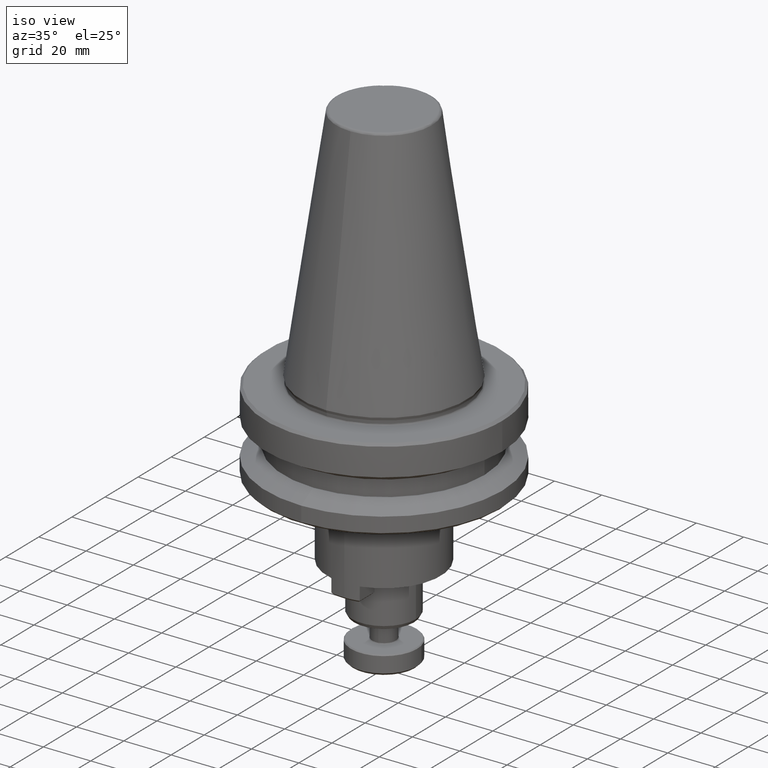
[diagram: clean part render]
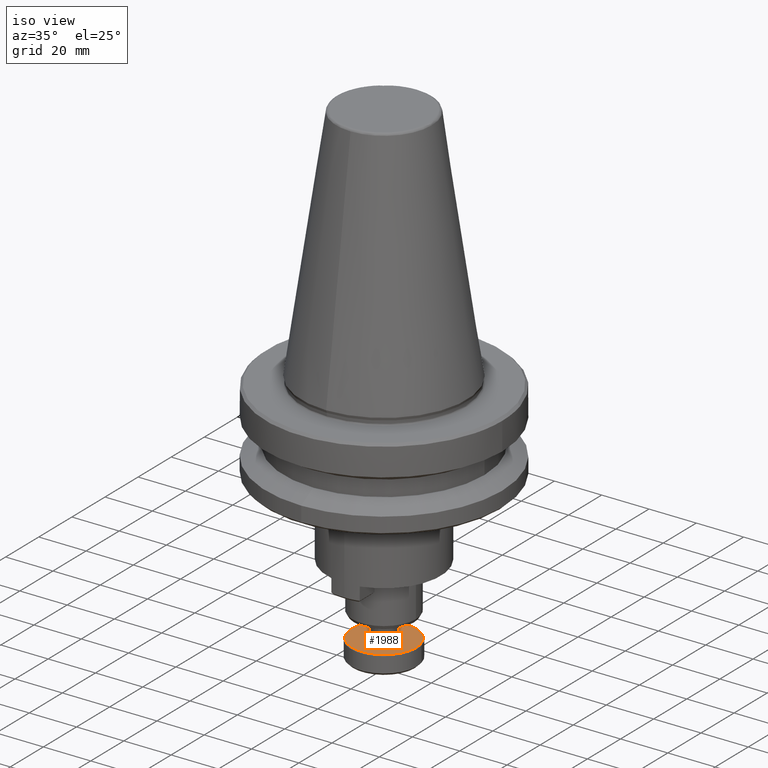
[diagram: same view with one face highlighted and labeled with its STEP entity id]
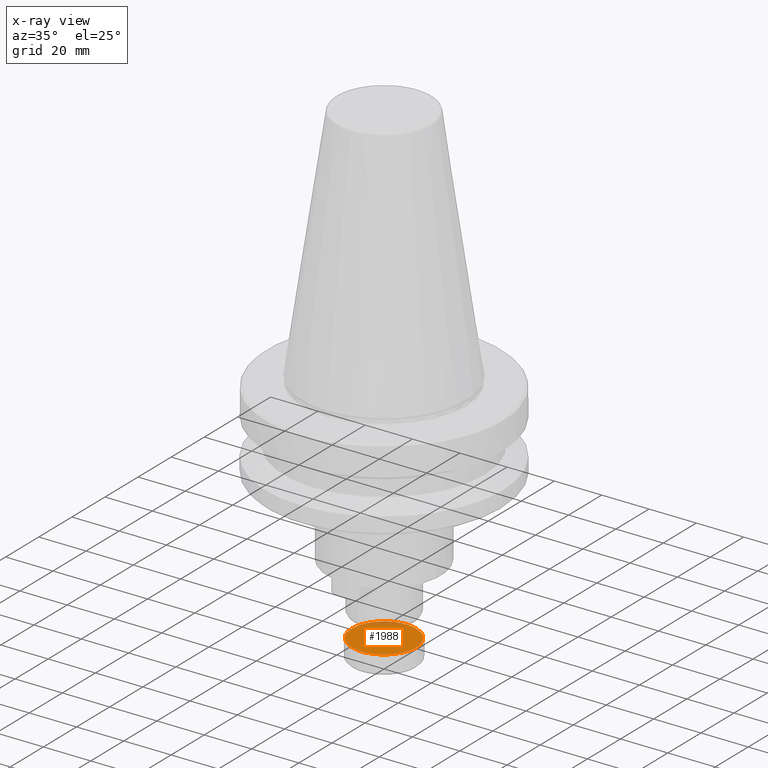
[diagram: x-ray of the same camera — body ghosted, the highlighted face saturated]
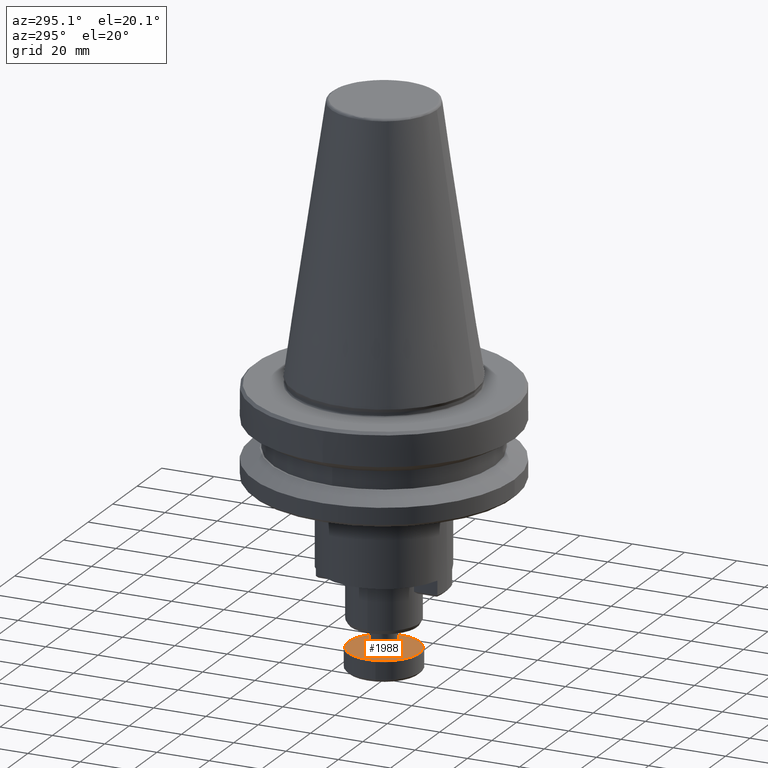
[diagram: same view with one face highlighted and labeled with its STEP entity id]
A machine part, iso view. The second image highlights one B-rep face of the part: STEP entity #1988.
The next image is the same camera in x-ray: the body ghosted, the highlighted face saturated — about 8% of this face is hidden behind the body in this view.
A second angle (auxiliary view) of the same face is appended — the face is thin or edge-on in the first view.
In plain terms, the highlighted planar face has unit normal (0, 0, -1).
Its self-contained STEP definition (entity closure, byte-faithful):
#6 = CARTESIAN_POINT ( 'NONE',  ( 1.150362036825479000, -5.276046545541901400, -100.3811879818963000 ) ) ;
#20 = CARTESIAN_POINT ( 'NONE',  ( 1.652615713946306000, -5.166537738417531500, -100.3811879820430300 ) ) ;
#34 = CARTESIAN_POINT ( 'NONE',  ( 2.129708564363298300, -4.988823327713994600, -100.3811879820430300 ) ) ;
#45 = CARTESIAN_POINT ( 'NONE',  ( 2.588702026038348400, -4.739060813099229100, -100.3811879820430300 ) ) ;
#49 = CARTESIAN_POINT ( 'NONE',  ( 2.599578677311277900, -4.733110212757438300, -100.3811879820430400 ) ) ;
#53 = CARTESIAN_POINT ( 'NONE',  ( 2.617463178958769500, -4.723250147219183700, -100.3811879820429900 ) ) ;
#56 = CARTESIAN_POINT ( 'NONE',  ( 2.644236343932646200, -4.708393083940179300, -100.3811879820430200 ) ) ;
#62 = CARTESIAN_POINT ( 'NONE',  ( 2.706331949723496300, -4.673257848154497300, -100.3811879820430300 ) ) ;
#65 = CARTESIAN_POINT ( 'NONE',  ( 2.829022711379109100, -4.601112357377747500, -100.3811879820430300 ) ) ;
#81 = CARTESIAN_POINT ( 'NONE',  ( 3.068402434985964900, -4.449321299002726900, -100.3811879820429900 ) ) ;
#93 = CARTESIAN_POINT ( 'NONE',  ( 3.523154683382175600, -4.115738874966598200, -100.3811879820430000 ) ) ;
#96 = CARTESIAN_POINT ( 'NONE',  ( 3.871787126891798300, -3.778381984730911500, -100.3811879820430200 ) ) ;
#102 = CARTESIAN_POINT ( 'NONE',  ( 4.092609132733771900, -3.522877452683379000, -100.3811879820430000 ) ) ;
#106 = CARTESIAN_POINT ( 'NONE',  ( 4.101358733077885800, -3.512694658450159500, -100.3811879820430200 ) ) ;
#112 = CARTESIAN_POINT ( 'NONE',  ( 4.116705079970385500, -3.494702107432545300, -100.3811879820430200 ) ) ;
#118 = CARTESIAN_POINT ( 'NONE',  ( 4.139629770922908000, -3.467646085698922000, -100.3811879820430000 ) ) ;
#120 = CARTESIAN_POINT ( 'NONE',  ( 4.192456910775232100, -3.404045001870078700, -100.3811879820430400 ) ) ;
#122 = CARTESIAN_POINT ( 'NONE',  ( 4.295455967665605900, -3.274961368410832300, -100.3811879820430200 ) ) ;
#125 = CARTESIAN_POINT ( 'NONE',  ( 4.490833190189316100, -3.009268238286106000, -100.3811879820430000 ) ) ;
#127 = CARTESIAN_POINT ( 'NONE',  ( 4.640092138768976900, -2.768629789825642500, -100.3811879820430300 ) ) ;
#130 = CARTESIAN_POINT ( 'NONE',  ( 4.742932729126249700, -2.581700213589233500, -100.3811879820430000 ) ) ;
#139 = CARTESIAN_POINT ( 'NONE',  ( 4.756106838168597600, -2.557377663940258100, -100.3811879820430200 ) ) ;
#141 = CARTESIAN_POINT ( 'NONE',  ( 4.780202662698194200, -2.512073750092004500, -100.3811879820430200 ) ) ;
#144 = CARTESIAN_POINT ( 'NONE',  ( 4.815841382717923800, -2.443906468035501600, -100.3811879820430400 ) ) ;
#150 = CARTESIAN_POINT ( 'NONE',  ( 4.895463278674601100, -2.283369597581451400, -100.3811879820430000 ) ) ;
#155 = CARTESIAN_POINT ( 'NONE',  ( 5.040566600897211200, -1.956376340717868500, -100.3811879820429900 ) ) ;
#159 = CARTESIAN_POINT ( 'NONE',  ( 5.140700071903900400, -1.665948664625405400, -100.3811879820430300 ) ) ;
#162 = CARTESIAN_POINT ( 'NONE',  ( 5.203679772566853300, -1.443054036737076800, -100.3811879820430300 ) ) ;
#169 = CARTESIAN_POINT ( 'NONE',  ( 5.211299281826140600, -1.415338017895686900, -100.3811879820430300 ) ) ;
#171 = CARTESIAN_POINT ( 'NONE',  ( 5.225309183074790200, -1.362757150610697500, -100.3811879820430000 ) ) ;
#175 = CARTESIAN_POINT ( 'NONE',  ( 5.245716682419029600, -1.283787071004982600, -100.3811879820430300 ) ) ;
#180 = CARTESIAN_POINT ( 'NONE',  ( 5.289082713187747600, -1.098832101177367400, -100.3811879820430000 ) ) ;
#184 = CARTESIAN_POINT ( 'NONE',  ( 5.358808903920481400, -0.7261563585316693800, -100.3811879820430200 ) ) ;
#190 = CARTESIAN_POINT ( 'NONE',  ( 5.389421288883334600, -0.4019786311374218800, -100.3811879820430300 ) ) ;
#193 = CARTESIAN_POINT ( 'NONE',  ( 5.398735542252664400, -0.1291964268893950300, -100.3811879820430300 ) ) ;
#196 = CARTESIAN_POINT ( 'NONE',  ( 5.399839739984530600, -0.07147968702495936800, -100.3811879820430400 ) ) ;
#200 = CARTESIAN_POINT ( 'NONE',  ( 5.400199609606506400, 0.04057410595713973500, -100.3811879820429900 ) ) ;
#202 = CARTESIAN_POINT ( 'NONE',  ( 5.398132235255729900, 0.2084354076983429300, -100.3811879820429700 ) ) ;
#204 = CARTESIAN_POINT ( 'NONE',  ( 5.375058110284348900, 0.5985760643042051800, -100.3811879820430300 ) ) ;
#211 = CARTESIAN_POINT ( 'NONE',  ( 5.323994143475334600, 0.9303496886116083800, -100.3811879820430200 ) ) ;
#214 = CARTESIAN_POINT ( 'NONE',  ( 5.180151349317333700, 1.590386733515304100, -100.3811879820430300 ) ) ;
#224 = CARTESIAN_POINT ( 'NONE',  ( 5.031799607879891700, 2.010805156916731100, -100.3811879820430000 ) ) ;
#227 = CARTESIAN_POINT ( 'NONE',  ( 4.805383237352915900, 2.464045465936324700, -100.3811879820430300 ) ) ;
#234 = CARTESIAN_POINT ( 'NONE',  ( 4.781139574197873700, 2.510752427322908700, -100.3811879820430200 ) ) ;
#241 = CARTESIAN_POINT ( 'NONE',  ( 4.729676206310954500, 2.606475779371871100, -100.3811879820430200 ) ) ;
#251 = CARTESIAN_POINT ( 'NONE',  ( 4.650418824251693700, 2.748717163772183400, -100.3811879820430200 ) ) ;
#262 = CARTESIAN_POINT ( 'NONE',  ( 4.451048621177912800, 3.071208221660986800, -100.3811879820430000 ) ) ;
#270 = CARTESIAN_POINT ( 'NONE',  ( 4.255411912939519100, 3.331505404345243400, -100.3811879820430000 ) ) ;
#274 = CARTESIAN_POINT ( 'NONE',  ( 4.096310400387429800, 3.518666429319647000, -100.3811879820430300 ) ) ;
#286 = CARTESIAN_POINT ( 'NONE',  ( 4.080580999117365200, 3.536889747443430200, -100.3811879820430200 ) ) ;
#296 = CARTESIAN_POINT ( 'NONE',  ( 4.046796591970957200, 3.575511823526798000, -100.3811879820430300 ) ) ;
#311 = CARTESIAN_POINT ( 'NONE',  ( 3.995742921214126700, 3.633048026169833900, -100.3811879820430200 ) ) ;
#316 = CARTESIAN_POINT ( 'NONE',  ( 3.873978269187640300, 3.764520785296142400, -100.3811879820430200 ) ) ;
#319 = CARTESIAN_POINT ( 'NONE',  ( 3.619891284092486400, 4.016352782052307700, -100.3811879820430300 ) ) ;
#329 = CARTESIAN_POINT ( 'NONE',  ( 3.384003557938605000, 4.213157028135107400, -100.3811879820430400 ) ) ;
#338 = CARTESIAN_POINT ( 'NONE',  ( 3.198038322429891200, 4.351234337128824200, -100.3811879820430300 ) ) ;
#342 = CARTESIAN_POINT ( 'NONE',  ( 3.180624276276292000, 4.363971968077399000, -100.3811879820430200 ) ) ;
#345 = CARTESIAN_POINT ( 'NONE',  ( 3.142307432522880800, 4.391653347830429200, -100.3811879820430200 ) ) ;
#346 = CARTESIAN_POINT ( 'NONE',  ( 3.084592173238360800, 4.432777243042901100, -100.3811879820430000 ) ) ;
#350 = CARTESIAN_POINT ( 'NONE',  ( 2.948243279327031500, 4.525945777619168300, -100.3811879820430300 ) ) ;
#353 = CARTESIAN_POINT ( 'NONE',  ( 2.668825669181194000, 4.701133963093701200, -100.3811879820430200 ) ) ;
#358 = CARTESIAN_POINT ( 'NONE',  ( 2.417805165073608100, 4.832182892909584000, -100.3811879820430300 ) ) ;
#361 = CARTESIAN_POINT ( 'NONE',  ( 2.234559118497686700, 4.915983931408884900, -100.3811879820430000 ) ) ;
#367 = CARTESIAN_POINT ( 'NONE',  ( 2.226740802006977700, 4.919528416966369600, -100.3811879820430000 ) ) ;
#373 = CARTESIAN_POINT ( 'NONE',  ( 2.208121890648158600, 4.927919341810818900, -100.3811879820430000 ) ) ;
#382 = CARTESIAN_POINT ( 'NONE',  ( 2.180172107952166100, 4.940422695511551300, -100.3811879820430000 ) ) ;
#385 = CARTESIAN_POINT ( 'NONE',  ( 2.114806038723872700, 4.969015952518404300, -100.3811879820430300 ) ) ;
#387 = CARTESIAN_POINT ( 'NONE',  ( 1.983474261850009400, 5.023877526685937200, -100.3811879820430300 ) ) ;
#396 = CARTESIAN_POINT ( 'NONE',  ( 1.718412154433179400, 5.124300915636345300, -100.3811879820430000 ) ) ;
#398 = CARTESIAN_POINT ( 'NONE',  ( 1.178693724923108400, 5.287948655998541800, -100.3811879820430000 ) ) ;
#402 = CARTESIAN_POINT ( 'NONE',  ( 0.6996307030406210300, 5.364448369099942900, -100.3811879820430000 ) ) ;
#406 = CARTESIAN_POINT ( 'NONE',  ( 0.3627365639649428600, 5.387814106648243700, -100.3811879820430300 ) ) ;
#408 = EDGE_CURVE ( 'NONE', #1760, #618, #2023, .T. ) ;
#409 = CARTESIAN_POINT ( 'NONE',  ( 0.3569207465942445500, 5.388199834389424400, -100.3811879820430400 ) ) ;
#421 = CARTESIAN_POINT ( 'NONE',  ( 0.3408997232584556300, 5.389240449816456100, -100.3811879820429900 ) ) ;
#423 = EDGE_CURVE ( 'NONE', #1670, #1490, #613, .T. ) ;
#427 = CARTESIAN_POINT ( 'NONE',  ( 0.3168718955950083900, 5.390748207989877200, -100.3811879820430200 ) ) ;
#430 = CARTESIAN_POINT ( 'NONE',  ( 0.2608329157619346800, 5.393894155624651400, -100.3811879820430300 ) ) ;
#432 = CARTESIAN_POINT ( 'NONE',  ( 0.1488587616223533700, 5.398697431814675900, -100.3811879820429900 ) ) ;
#435 = CARTESIAN_POINT ( 'NONE',  ( -0.07467432455056453900, 5.402349507876613700, -100.3811879820430000 ) ) ;
#437 = CARTESIAN_POINT ( 'NONE',  ( -0.5200796084714030000, 5.385835754728060600, -100.3811879820430200 ) ) ;
#454 = CARTESIAN_POINT ( 'NONE',  ( -0.8990083288178345500, 5.330850414419427500, -100.3811879820430300 ) ) ;
#464 = CARTESIAN_POINT ( 'NONE',  ( -1.150362036933692400, 5.276046545518307000, -100.3811879818963000 ) ) ;
#587 = FACE_BOUND ( 'NONE', #894, .T. ) ;
#613 = B_SPLINE_CURVE_WITH_KNOTS ( 'NONE', 3,
 ( #2201, #1765, #1415, #2495, #2228, #2282, #2308, #1531, #1403, #2073, #2022, #1435, #1624, #841, #838, #835, #1824, #2601, #2019, #764, #760, #755, #1652, #1417, #1606, #1044, #1548, #1708, #1662, #1438, #1505, #809, #804, #801, #1804, #1821, #1457, #733, #729, #728, #1555, #1580, #1614, #1815, #1043, #1039, #1573, #1350, #1915, #786, #785, #784, #2432, #2341, #1445, #859, #857, #855, #1895, #1885, #1882, #1875, #1879, #1394, #1501, #1390, #1270, #1668, #1444, #1510, #1054, #1609, #1608, #1823, #1889, #1892, #1264, #1671, #1450, #1480, #1613 ),
 .UNSPECIFIED., .F., .F.,
 ( 4, 1, 1, 1, 1, 1, 2, 2, 1, 1, 1, 1, 1, 2, 2, 1, 1, 1, 2, 2, 1, 1, 1, 2, 2, 1, 1, 2, 2, 2, 1, 1, 2, 2, 1, 1, 1, 2, 2, 1, 1, 1, 2, 2, 1, 1, 1, 1, 2, 2, 1, 1, 1, 1, 1, 2, 2, 4 ),
 ( 0.0000000000000000000, 0.06250000000000086000, 0.09375000000000129100, 0.1093750000000015000, 0.1171875000000016100, 0.1210937500000016500, 0.1230468750000016700, 0.1250000000000016700, 0.1875000000000023600, 0.2187500000000026600, 0.2343750000000028600, 0.2421875000000029400, 0.2460937500000029400, 0.2480468750000029400, 0.2500000000000029400, 0.2812500000000034400, 0.2968750000000036600, 0.3046875000000037200, 0.3085937500000037200, 0.3125000000000036600, 0.3437500000000033900, 0.3593750000000032200, 0.3671875000000031600, 0.3710937500000031600, 0.3750000000000031600, 0.4062500000000028300, 0.4218750000000026600, 0.4296875000000025500, 0.4375000000000023900, 0.5000000000000013300, 0.5312500000000008900, 0.5468750000000006700, 0.5546875000000005600, 0.5625000000000004400, 0.5937500000000000000, 0.6093749999999997800, 0.6171874999999996700, 0.6210937499999995600, 0.6249999999999994400, 0.6562499999999990000, 0.6718749999999987800, 0.6796874999999986700, 0.6835937499999986700, 0.6874999999999985600, 0.7187499999999981100, 0.7343749999999978900, 0.7421874999999977800, 0.7460937499999977800, 0.7480468749999977800, 0.7499999999999977800, 0.8124999999999986700, 0.8437499999999990000, 0.8593749999999991100, 0.8671874999999992200, 0.8710937499999991100, 0.8730468749999991100, 0.8749999999999991100, 1.000000000000000000 ),
 .UNSPECIFIED. ) ;
#618 = VERTEX_POINT ( 'NONE', #726 ) ;
#634 = AXIS2_PLACEMENT_3D ( 'NONE', #765, #1825, #1845 ) ;
#698 = CARTESIAN_POINT ( 'NONE',  ( -1.150362036933692400, 5.276046545518307000, -100.3811879818963000 ) ) ;
#726 = CARTESIAN_POINT ( 'NONE',  ( -13.26613177959899100, -2.994953690178425300, -100.3811879820430000 ) ) ;
#728 = CARTESIAN_POINT ( 'NONE',  ( -5.031799607887752900, -2.010805156920878500, -100.3811879820430400 ) ) ;
#729 = CARTESIAN_POINT ( 'NONE',  ( -4.805383237361022400, -2.464045465938392400, -100.3811879820430300 ) ) ;
#733 = CARTESIAN_POINT ( 'NONE',  ( -4.781139574205997900, -2.510752427324789900, -100.3811879820430400 ) ) ;
#755 = CARTESIAN_POINT ( 'NONE',  ( -2.948243279337503500, -4.525945777618592700, -100.3811879820430200 ) ) ;
#760 = CARTESIAN_POINT ( 'NONE',  ( -2.668825669192864200, -4.701133963092029700, -100.3811879820429900 ) ) ;
#764 = CARTESIAN_POINT ( 'NONE',  ( -2.417805165082237200, -4.832182892909634700, -100.3811879820430200 ) ) ;
#765 = CARTESIAN_POINT ( 'NONE',  ( 1.208669655119371500E-017, 2.728685123852937400E-018, -100.3811879820430000 ) ) ;
#784 = CARTESIAN_POINT ( 'NONE',  ( -5.225309183082490700, 1.362757150610594400, -100.3811879820429900 ) ) ;
#785 = CARTESIAN_POINT ( 'NONE',  ( -5.245716682426762000, 1.283787071005266300, -100.3811879820430200 ) ) ;
#786 = CARTESIAN_POINT ( 'NONE',  ( -5.289082713195553800, 1.098832101178324400, -100.3811879820430200 ) ) ;
#797 = AXIS2_PLACEMENT_3D ( 'NONE', #1957, #1953, #1949 ) ;
#801 = CARTESIAN_POINT ( 'NONE',  ( -4.255411912947148600, -3.331505404346828000, -100.3811879820430300 ) ) ;
#804 = CARTESIAN_POINT ( 'NONE',  ( -4.096310400394636500, -3.518666429322327500, -100.3811879820430000 ) ) ;
#809 = CARTESIAN_POINT ( 'NONE',  ( -4.080580999125129600, -3.536889747445510800, -100.3811879820430300 ) ) ;
#835 = CARTESIAN_POINT ( 'NONE',  ( -2.180172107957782900, -4.940422695513758500, -100.3811879820430200 ) ) ;
#838 = CARTESIAN_POINT ( 'NONE',  ( -2.114806038730252500, -4.969015952520446300, -100.3811879820430300 ) ) ;
#841 = CARTESIAN_POINT ( 'NONE',  ( -1.983474261857739700, -5.023877526687683400, -100.3811879820430000 ) ) ;
#855 = CARTESIAN_POINT ( 'NONE',  ( -4.815841382723827600, 2.443906468037609200, -100.3811879820429900 ) ) ;
#857 = CARTESIAN_POINT ( 'NONE',  ( -4.895463278680032300, 2.283369597585188400, -100.3811879820430200 ) ) ;
#859 = CARTESIAN_POINT ( 'NONE',  ( -5.040566600902445200, 1.956376340722816100, -100.3811879820429900 ) ) ;
#894 = EDGE_LOOP ( 'NONE', ( #1258, #1149 ) ) ;
#950 = B_SPLINE_CURVE_WITH_KNOTS ( 'NONE', 3,
 ( #464, #454, #437, #435, #432, #430, #427, #421, #409, #406, #402, #398, #396, #387, #385, #382, #373, #367, #361, #358, #353, #350, #346, #345, #342, #338, #329, #319, #316, #311, #296, #286, #274, #270, #262, #251, #241, #234, #227, #224, #214, #211, #204, #202, #200, #196, #193, #190, #184, #180, #175, #171, #169, #162, #159, #155, #150, #144, #141, #139, #130, #127, #125, #122, #120, #118, #112, #106, #102, #96, #93, #81, #65, #62, #56, #53, #49, #45, #34, #20, #6 ),
 .UNSPECIFIED., .F., .F.,
 ( 4, 1, 1, 1, 1, 1, 2, 2, 1, 1, 1, 1, 1, 2, 2, 1, 1, 1, 2, 2, 1, 1, 1, 2, 2, 1, 1, 2, 2, 2, 1, 1, 2, 2, 1, 1, 1, 2, 2, 1, 1, 1, 2, 2, 1, 1, 1, 1, 2, 2, 1, 1, 1, 1, 1, 2, 2, 4 ),
 ( 0.0000000000000000000, 0.06249999999999932000, 0.09374999999999897300, 0.1093749999999988100, 0.1171874999999987200, 0.1210937499999986800, 0.1230468749999986700, 0.1249999999999986400, 0.1874999999999982000, 0.2187499999999980000, 0.2343749999999978900, 0.2421874999999978400, 0.2460937499999977500, 0.2480468749999977000, 0.2499999999999976100, 0.2812499999999971700, 0.2968749999999969500, 0.3046874999999968400, 0.3085937499999968400, 0.3124999999999967800, 0.3437499999999966700, 0.3593749999999966100, 0.3671874999999964500, 0.3710937499999963900, 0.3749999999999963400, 0.4062499999999956100, 0.4218749999999952800, 0.4296874999999951200, 0.4374999999999948900, 0.4999999999999937800, 0.5312499999999932300, 0.5468749999999928900, 0.5546874999999928900, 0.5624999999999927800, 0.5937499999999922300, 0.6093749999999919000, 0.6171874999999919000, 0.6210937499999917800, 0.6249999999999917800, 0.6562499999999912300, 0.6718749999999909000, 0.6796874999999906700, 0.6835937499999906700, 0.6874999999999906700, 0.7187499999999903400, 0.7343749999999901200, 0.7421874999999900100, 0.7460937499999900100, 0.7480468749999901200, 0.7499999999999902300, 0.8124999999999905600, 0.8437499999999907900, 0.8593749999999910100, 0.8671874999999910100, 0.8710937499999911200, 0.8730468749999910100, 0.8749999999999910100, 1.000000000000000000 ),
 .UNSPECIFIED. ) ;
#1039 = CARTESIAN_POINT ( 'NONE',  ( -5.399839739992875900, 0.07147968702368590100, -100.3811879820430600 ) ) ;
#1043 = CARTESIAN_POINT ( 'NONE',  ( -5.400199609614893400, -0.04057410595842457500, -100.3811879820430300 ) ) ;
#1044 = CARTESIAN_POINT ( 'NONE',  ( -3.198038322435687400, -4.351234337131655700, -100.3811879820430300 ) ) ;
#1054 = CARTESIAN_POINT ( 'NONE',  ( -3.523154683381501500, 4.115738874970360500, -100.3811879820430200 ) ) ;
#1149 = ORIENTED_EDGE ( 'NONE', *, *, #2233, .T. ) ;
#1194 = FACE_OUTER_BOUND ( 'NONE', #2119, .T. ) ;
#1258 = ORIENTED_EDGE ( 'NONE', *, *, #423, .T. ) ;
#1264 = CARTESIAN_POINT ( 'NONE',  ( -2.599578677313693300, 4.733110212757932100, -100.3811879820429900 ) ) ;
#1270 = CARTESIAN_POINT ( 'NONE',  ( -4.116705079975194100, 3.494702107433575100, -100.3811879820430200 ) ) ;
#1350 = CARTESIAN_POINT ( 'NONE',  ( -5.389421288891499600, 0.4019786311376322100, -100.3811879820430400 ) ) ;
#1384 = AXIS2_PLACEMENT_3D ( 'NONE', #1933, #1911, #1908 ) ;
#1390 = CARTESIAN_POINT ( 'NONE',  ( -4.139629770927334600, 3.467646085700565100, -100.3811879820430400 ) ) ;
#1394 = CARTESIAN_POINT ( 'NONE',  ( -4.295455967668085700, 3.274961368415707500, -100.3811879820430200 ) ) ;
#1403 = CARTESIAN_POINT ( 'NONE',  ( -0.3569207465965066300, -5.388199834390824200, -100.3811879820430300 ) ) ;
#1415 = CARTESIAN_POINT ( 'NONE',  ( 0.5200796084672978400, -5.385835754729070500, -100.3811879820430000 ) ) ;
#1417 = CARTESIAN_POINT ( 'NONE',  ( -3.142307432530546200, -4.391653347831907100, -100.3811879820430200 ) ) ;
#1435 = CARTESIAN_POINT ( 'NONE',  ( -1.178693724933957700, -5.287948655999242600, -100.3811879820430000 ) ) ;
#1438 = CARTESIAN_POINT ( 'NONE',  ( -3.995742921222972900, -3.633048026170876600, -100.3811879820430000 ) ) ;
#1444 = CARTESIAN_POINT ( 'NONE',  ( -4.092609132739220000, 3.522877452683481600, -100.3811879820430000 ) ) ;
#1445 = CARTESIAN_POINT ( 'NONE',  ( -5.140700071910248200, 1.665948664627902300, -100.3811879820430400 ) ) ;
#1450 = CARTESIAN_POINT ( 'NONE',  ( -2.129708564364331200, 4.988823327714084300, -100.3811879820430600 ) ) ;
#1457 = CARTESIAN_POINT ( 'NONE',  ( -4.729676206319101800, -2.606475779373424100, -100.3811879820430400 ) ) ;
#1475 = ORIENTED_EDGE ( 'NONE', *, *, #1968, .F. ) ;
#1480 = CARTESIAN_POINT ( 'NONE',  ( -1.652615713946494300, 5.166537738417489800, -100.3811879820430300 ) ) ;
#1490 = VERTEX_POINT ( 'NONE', #698 ) ;
#1501 = CARTESIAN_POINT ( 'NONE',  ( -4.192456910778871800, 3.404045001872999100, -100.3811879820429700 ) ) ;
#1505 = CARTESIAN_POINT ( 'NONE',  ( -4.046796591979178200, -3.575511823528446900, -100.3811879820430300 ) ) ;
#1510 = CARTESIAN_POINT ( 'NONE',  ( -3.871787126893899700, 3.778381984733117700, -100.3811879820430000 ) ) ;
#1531 = CARTESIAN_POINT ( 'NONE',  ( -0.3408997232608060900, -5.389240449817859400, -100.3811879820430200 ) ) ;
#1548 = CARTESIAN_POINT ( 'NONE',  ( -3.384003557947202100, -4.213157028135704300, -100.3811879820430400 ) ) ;
#1555 = CARTESIAN_POINT ( 'NONE',  ( -5.180151349325704800, -1.590386733517528100, -100.3811879820430300 ) ) ;
#1573 = CARTESIAN_POINT ( 'NONE',  ( -5.398735542261004400, 0.1291964268877539800, -100.3811879820430400 ) ) ;
#1580 = CARTESIAN_POINT ( 'NONE',  ( -5.323994143483825600, -0.9303496886132609500, -100.3811879820430200 ) ) ;
#1606 = CARTESIAN_POINT ( 'NONE',  ( -3.180624276283221100, -4.363971968079406200, -100.3811879820430400 ) ) ;
#1608 = CARTESIAN_POINT ( 'NONE',  ( -2.829022711379950600, 4.601112357379623300, -100.3811879820429900 ) ) ;
#1609 = CARTESIAN_POINT ( 'NONE',  ( -3.068402434985690400, 4.449321299005671200, -100.3811879820430300 ) ) ;
#1613 = CARTESIAN_POINT ( 'NONE',  ( -1.150362036933692400, 5.276046545518307000, -100.3811879818963000 ) ) ;
#1614 = CARTESIAN_POINT ( 'NONE',  ( -5.375058110292855900, -0.5985760643056449200, -100.3811879820430000 ) ) ;
#1624 = CARTESIAN_POINT ( 'NONE',  ( -1.718412154442899200, -5.124300915637602000, -100.3811879820430400 ) ) ;
#1652 = CARTESIAN_POINT ( 'NONE',  ( -3.084592173247048000, -4.432777243043647200, -100.3811879820430300 ) ) ;
#1662 = CARTESIAN_POINT ( 'NONE',  ( -3.873978269197581300, -3.764520785296104200, -100.3811879820430200 ) ) ;
#1668 = CARTESIAN_POINT ( 'NONE',  ( -4.101358733082958200, 3.512694658450767000, -100.3811879820430000 ) ) ;
#1670 = VERTEX_POINT ( 'NONE', #2619 ) ;
#1671 = CARTESIAN_POINT ( 'NONE',  ( -2.588702026040934400, 4.739060813099609200, -100.3811879820430200 ) ) ;
#1708 = CARTESIAN_POINT ( 'NONE',  ( -3.619891284103096600, -4.016352782051408000, -100.3811879820430300 ) ) ;
#1760 = VERTEX_POINT ( 'NONE', #2392 ) ;
#1765 = CARTESIAN_POINT ( 'NONE',  ( 0.8990083288156457400, -5.330850414419903600, -100.3811879820430300 ) ) ;
#1804 = CARTESIAN_POINT ( 'NONE',  ( -4.451048621185930400, -3.071208221661807100, -100.3811879820430200 ) ) ;
#1815 = CARTESIAN_POINT ( 'NONE',  ( -5.398132235264166700, -0.2084354076996555700, -100.3811879820430000 ) ) ;
#1821 = CARTESIAN_POINT ( 'NONE',  ( -4.650418824259847200, -2.748717163773331900, -100.3811879820430200 ) ) ;
#1823 = CARTESIAN_POINT ( 'NONE',  ( -2.706331949725123900, 4.673257848155676800, -100.3811879820430200 ) ) ;
#1824 = CARTESIAN_POINT ( 'NONE',  ( -2.208121890653427200, -4.927919341813095300, -100.3811879820430200 ) ) ;
#1825 = DIRECTION ( 'NONE',  ( -3.021674137798368600E-017, -6.821712809632206800E-018, -1.000000000000000000 ) ) ;
#1845 = DIRECTION ( 'NONE',  ( -0.9754508661469856200, -0.2202171831013549900, 0.0000000000000000000 ) ) ;
#1875 = CARTESIAN_POINT ( 'NONE',  ( -4.640092138772918600, 2.768629789829177400, -100.3811879820430400 ) ) ;
#1879 = CARTESIAN_POINT ( 'NONE',  ( -4.490833190191085400, 3.009268238292478700, -100.3811879820429900 ) ) ;
#1882 = CARTESIAN_POINT ( 'NONE',  ( -4.742932729133214800, 2.581700213588577200, -100.3811879820430000 ) ) ;
#1885 = CARTESIAN_POINT ( 'NONE',  ( -4.756106838174991600, 2.557377663940797200, -100.3811879820429900 ) ) ;
#1889 = CARTESIAN_POINT ( 'NONE',  ( -2.644236343934715600, 4.708393083940972400, -100.3811879820430200 ) ) ;
#1892 = CARTESIAN_POINT ( 'NONE',  ( -2.617463178961045400, 4.723250147219798300, -100.3811879820430300 ) ) ;
#1895 = CARTESIAN_POINT ( 'NONE',  ( -4.780202662704383900, 2.512073750093203600, -100.3811879820430200 ) ) ;
#1908 = DIRECTION ( 'NONE',  ( -0.2130300069619630300, 0.9770456571387982100, 0.0000000000000000000 ) ) ;
#1911 = DIRECTION ( 'NONE',  ( 0.0000000000000000000, 0.0000000000000000000, -1.000000000000000000 ) ) ;
#1915 = CARTESIAN_POINT ( 'NONE',  ( -5.358808903928458100, 0.7261563585330600400, -100.3811879820430200 ) ) ;
#1933 = CARTESIAN_POINT ( 'NONE',  ( -5.876197168640074700, -9.153109947731774600, -100.3811879820430200 ) ) ;
#1944 = PLANE ( 'NONE',  #1384 ) ;
#1949 = DIRECTION ( 'NONE',  ( -0.9754508661469856200, -0.2202171831013549900, 0.0000000000000000000 ) ) ;
#1953 = DIRECTION ( 'NONE',  ( -3.021674137798368600E-017, -6.821712809632206800E-018, -1.000000000000000000 ) ) ;
#1957 = CARTESIAN_POINT ( 'NONE',  ( 1.208669655119371500E-017, 2.728685123852937400E-018, -100.3811879820430000 ) ) ;
#1968 = EDGE_CURVE ( 'NONE', #618, #1760, #2774, .T. ) ;
#1988 = ADVANCED_FACE ( 'NONE', ( #587, #1194 ), #1944, .F. ) ;
#2019 = CARTESIAN_POINT ( 'NONE',  ( -2.234559118502240900, -4.915983931411404700, -100.3811879820430000 ) ) ;
#2022 = CARTESIAN_POINT ( 'NONE',  ( -0.6996307030475638100, -5.364448369100873700, -100.3811879820430300 ) ) ;
#2023 = CIRCLE ( 'NONE', #634, 13.59999999999999300 ) ;
#2073 = CARTESIAN_POINT ( 'NONE',  ( -0.3627365639669664100, -5.387814106649659400, -100.3811879820430200 ) ) ;
#2119 = EDGE_LOOP ( 'NONE', ( #1475, #2561 ) ) ;
#2201 = CARTESIAN_POINT ( 'NONE',  ( 1.150362036825479000, -5.276046545541901400, -100.3811879818963000 ) ) ;
#2228 = CARTESIAN_POINT ( 'NONE',  ( -0.1488587616256058000, -5.398697431816060500, -100.3811879820430000 ) ) ;
#2233 = EDGE_CURVE ( 'NONE', #1490, #1670, #950, .T. ) ;
#2282 = CARTESIAN_POINT ( 'NONE',  ( -0.2608329157646969200, -5.393894155626053800, -100.3811879820430000 ) ) ;
#2308 = CARTESIAN_POINT ( 'NONE',  ( -0.3168718955974882400, -5.390748207991284100, -100.3811879820430300 ) ) ;
#2341 = CARTESIAN_POINT ( 'NONE',  ( -5.203679772574675500, 1.443054036735987400, -100.3811879820430000 ) ) ;
#2392 = CARTESIAN_POINT ( 'NONE',  ( 13.26613177959899300, 2.994953690178427500, -100.3811879820430000 ) ) ;
#2432 = CARTESIAN_POINT ( 'NONE',  ( -5.211299281833817100, 1.415338017895305000, -100.3811879820429700 ) ) ;
#2495 = CARTESIAN_POINT ( 'NONE',  ( 0.07467432454662868700, -5.402349507877923800, -100.3811879820429900 ) ) ;
#2561 = ORIENTED_EDGE ( 'NONE', *, *, #408, .F. ) ;
#2601 = CARTESIAN_POINT ( 'NONE',  ( -2.226740802012011400, -4.919528416968693000, -100.3811879820430200 ) ) ;
#2619 = CARTESIAN_POINT ( 'NONE',  ( 1.150362036825479000, -5.276046545541901400, -100.3811879818963000 ) ) ;
#2774 = CIRCLE ( 'NONE', #797, 13.59999999999999300 ) ;